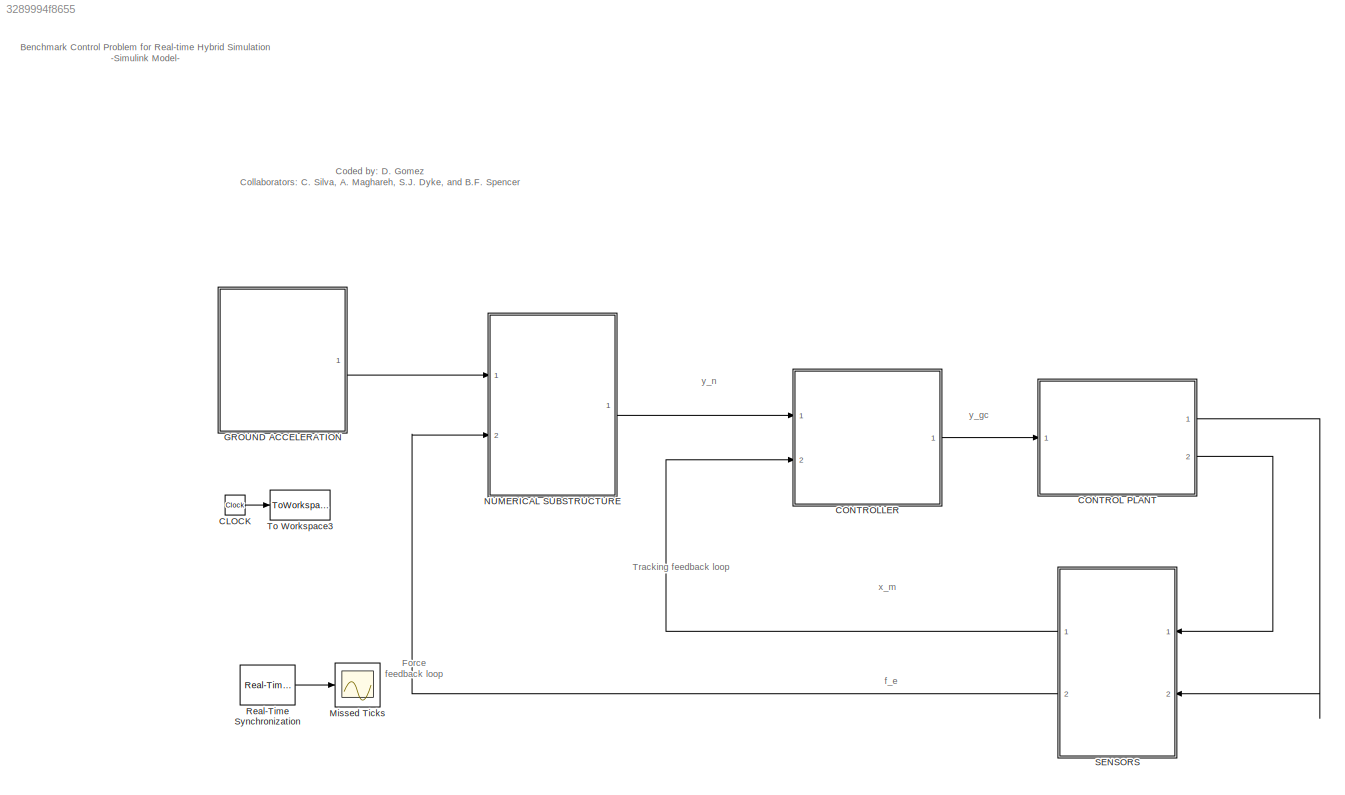
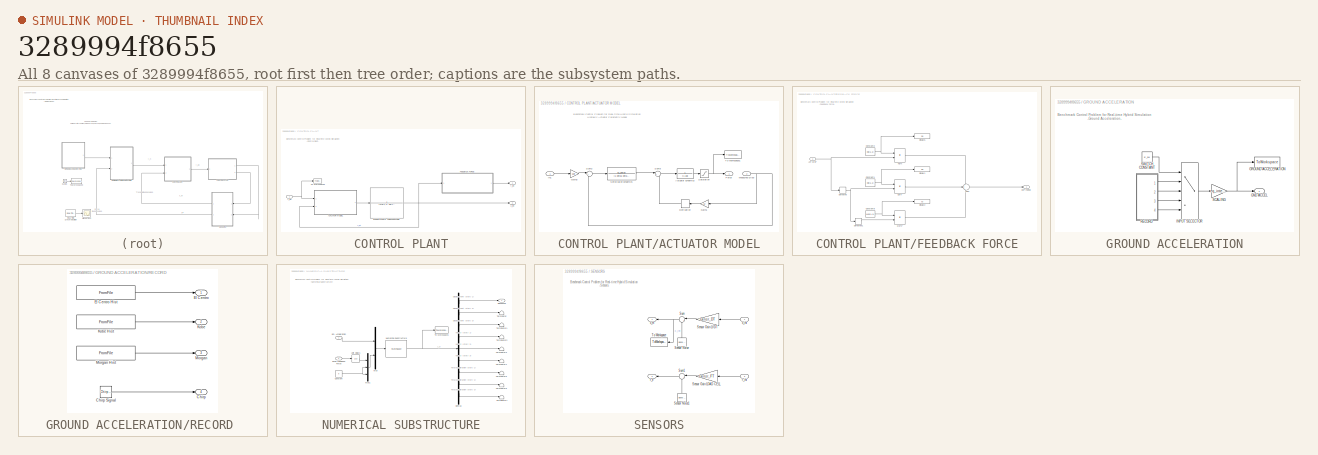
[diagram: thumbnail index - all 8 canvases of the model, root first then tree order]
MODEL slx_3289994f8655
KIND model
CONFIG AbsTol = auto
CONFIG EnableMultiTasking = on
CONFIG FixedStep = dt_rths
CONFIG MaxStep = auto
CONFIG MinStep = auto
CONFIG RelTol = 1e-3
CONFIG SampleTimeConstraint = Unconstrained
CONFIG Solver = ode4
CONFIG SolverName = ode4
CONFIG StartTime = 0.0
CONFIG StopTime = tend
BLOCK [Clock] CLOCK
  Decimation = 1
BLOCK [SubSystem] CONTROL PLANT
  Ports = [1, 2]
  RequestExecContextInheritance = off
BLOCK [SubSystem] CONTROL PLANT/ACTUATOR MODEL
  Ports = [2, 1]
  RequestExecContextInheritance = off
BLOCK [TransferFcn] CONTROL PLANT/ACTUATOR MODEL/Actuator dynamics
  Denominator = [1 a3]
  Numerator = 1
BLOCK [Derivative] CONTROL PLANT/ACTUATOR MODEL/Derivative
BLOCK [Outport] CONTROL PLANT/ACTUATOR MODEL/Force
  IconDisplay = Port number
BLOCK [Gain] CONTROL PLANT/ACTUATOR MODEL/Gain1
  Gain = a2
  Multiplication = Matrix(K*u)
  OutDataTypeStr = Inherit: Inherit via internal rule
  ParamDataTypeStr = Inherit: Inherit via internal rule
  SaturateOnIntegerOverflow = off
BLOCK [Gain] CONTROL PLANT/ACTUATOR MODEL/Gain3
  Gain = gain
  Multiplication = Matrix(K*u)
  OutDataTypeStr = Inherit: Inherit via internal rule
  ParamDataTypeStr = Inherit: Inherit via internal rule
  SaturateOnIntegerOverflow = off
BLOCK [Inport] CONTROL PLANT/ACTUATOR MODEL/In1
  IconDisplay = Port number
BLOCK [Inport] CONTROL PLANT/ACTUATOR MODEL/Measured Disp
  IconDisplay = Port number
  Port = 2
BLOCK [Saturate] CONTROL PLANT/ACTUATOR MODEL/Saturation
  InputPortMap = u0
  LowerLimit = -8900
  Ports = [1, 1]
  UpperLimit = 8900
BLOCK [TransferFcn] CONTROL PLANT/ACTUATOR MODEL/Servo-valve dynamics
  Denominator = [1 beta1 beta2]
  Numerator = a1_beta0
BLOCK [Sum] CONTROL PLANT/ACTUATOR MODEL/Sum2
  IconShape = round
  InputSameDT = off
  Inputs = |+-
  OutDataTypeStr = Inherit: Inherit via internal rule
  Ports = [2, 1]
  SaturateOnIntegerOverflow = off
BLOCK [Sum] CONTROL PLANT/ACTUATOR MODEL/Sum3
  IconShape = round
  InputSameDT = off
  Inputs = |+-
  OutDataTypeStr = Inherit: Inherit via internal rule
  Ports = [2, 1]
  SaturateOnIntegerOverflow = off
BLOCK [ToWorkspace] CONTROL PLANT/ACTUATOR MODEL/To Workspace1
  FixptAsFi = on
  MaxDataPoints = inf
  Ports = [1]
  SampleTime = -1
  SaveFormat = Timeseries
  VariableName = Force_act
BLOCK [TransferFcn] CONTROL PLANT/EXPERIMENTAL SUBSTRUCTURE
  Denominator = [ME(1,1) CE(1,1) KE(1,1)]
  Numerator = 1
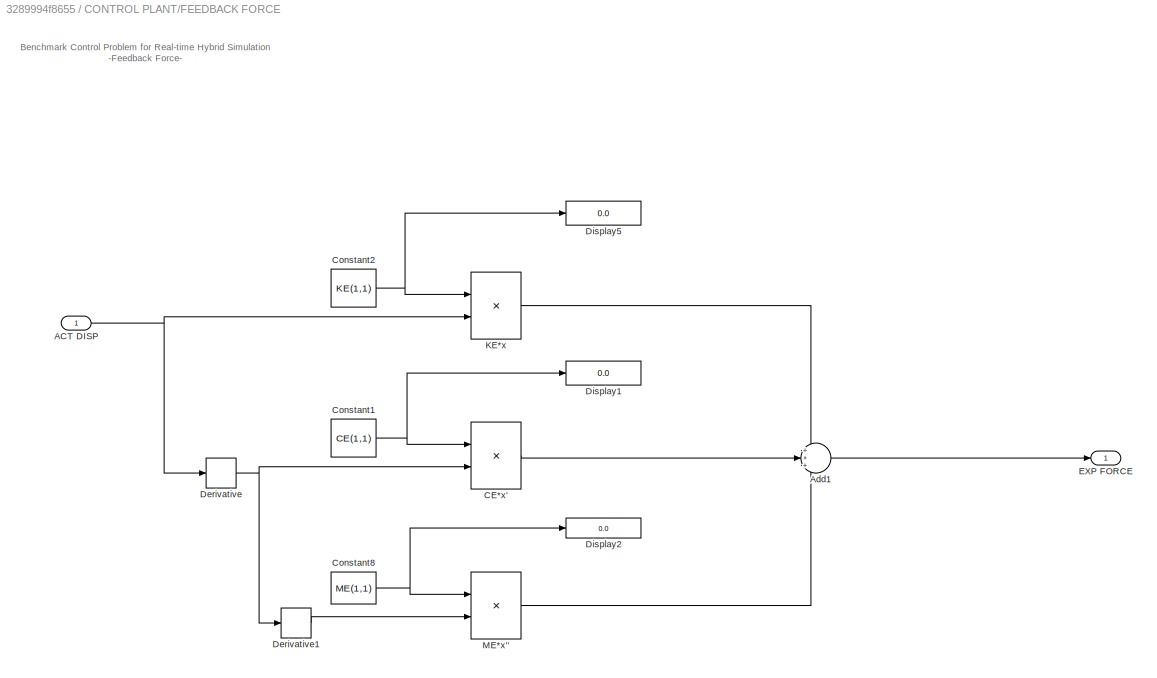
BLOCK [SubSystem] CONTROL PLANT/FEEDBACK FORCE
  Ports = [1, 1]
  RequestExecContextInheritance = off
BLOCK [Inport] CONTROL PLANT/FEEDBACK FORCE/ACT DISP
  IconDisplay = Port number
BLOCK [Sum] CONTROL PLANT/FEEDBACK FORCE/Add1
  IconShape = round
  InputSameDT = off
  Inputs = +++
  OutDataTypeStr = Inherit: Inherit via internal rule
  Ports = [3, 1]
  SaturateOnIntegerOverflow = off
BLOCK [Product] CONTROL PLANT/FEEDBACK FORCE/CE*x'
  InputSameDT = off
  OutDataTypeStr = Inherit: Inherit via internal rule
  Ports = [2, 1]
  SaturateOnIntegerOverflow = off
BLOCK [Constant] CONTROL PLANT/FEEDBACK FORCE/Constant1
  Value = CE(1,1)
  VectorParams1D = off
BLOCK [Constant] CONTROL PLANT/FEEDBACK FORCE/Constant2
  Value = KE(1,1)
  VectorParams1D = off
BLOCK [Constant] CONTROL PLANT/FEEDBACK FORCE/Constant8
  Value = ME(1,1)
  VectorParams1D = off
BLOCK [Derivative] CONTROL PLANT/FEEDBACK FORCE/Derivative
BLOCK [Derivative] CONTROL PLANT/FEEDBACK FORCE/Derivative1
BLOCK [Display] CONTROL PLANT/FEEDBACK FORCE/Display1
  Decimation = 1
  Ports = [1]
BLOCK [Display] CONTROL PLANT/FEEDBACK FORCE/Display2
  Decimation = 1
  Ports = [1]
BLOCK [Display] CONTROL PLANT/FEEDBACK FORCE/Display5
  Decimation = 1
  Ports = [1]
BLOCK [Outport] CONTROL PLANT/FEEDBACK FORCE/EXP FORCE
  IconDisplay = Port number
BLOCK [Product] CONTROL PLANT/FEEDBACK FORCE/KE*x
  InputSameDT = off
  OutDataTypeStr = Inherit: Inherit via internal rule
  Ports = [2, 1]
  SaturateOnIntegerOverflow = off
BLOCK [Product] CONTROL PLANT/FEEDBACK FORCE/ME*x''
  InputSameDT = off
  OutDataTypeStr = Inherit: Inherit via internal rule
  Ports = [2, 1]
  SaturateOnIntegerOverflow = off
BLOCK [ToWorkspace] CONTROL PLANT/To Workspace3
  FixptAsFi = on
  MaxDataPoints = inf
  Ports = [1]
  SampleTime = -1
  VariableName = y_gc
BLOCK [Outport] CONTROL PLANT/f_int
  IconDisplay = Port number
BLOCK [Outport] CONTROL PLANT/x_int
  IconDisplay = Port number
  Port = 2
BLOCK [Inport] CONTROL PLANT/y_gc
  IconDisplay = Port number
BLOCK [ModelReference] CONTROLLER
  ModelNameDialog = controller_model.slx
  ModelReferenceVersion = 1.9
  Ports = [2, 1]
BLOCK [SubSystem] GROUND ACCELERATION
  Ports = [0, 1]
  RequestExecContextInheritance = off
BLOCK [Outport] GROUND ACCELERATION/GND ACCEL
  IconDisplay = Port number
BLOCK [ToWorkspace] GROUND ACCELERATION/GROUND ACCELERATION
  MaxDataPoints = inf
  Ports = [1]
  SampleTime = -1
  VariableName = EQ_input
BLOCK [MultiPortSwitch] GROUND ACCELERATION/INPUT SELECTOR
  InputSameDT = off
  Inputs = 4
  Ports = [5, 1]
  SaturateOnIntegerOverflow = off
BLOCK [SubSystem] GROUND ACCELERATION/RECORD 
  Ports = [0, 4]
  RequestExecContextInheritance = off
BLOCK [Outport] GROUND ACCELERATION/RECORD /Chirp
  IconDisplay = Port number
  Port = 4
BLOCK [Reference] GROUND ACCELERATION/RECORD /Chirp Signal  REF=simulink/Sources/Chirp Signal
  Ports = [0, 1]
  SourceBlock = simulink/Sources/Chirp Signal
  SourceProductBaseCode = SL
  SourceProductName = Simulink
  SourceType = chirp
BLOCK [Outport] GROUND ACCELERATION/RECORD /El Centro
  IconDisplay = Port number
BLOCK [FromFile] GROUND ACCELERATION/RECORD /El Centro Hist
  FileName = ElCentroAccelNoScaling.mat
BLOCK [Outport] GROUND ACCELERATION/RECORD /Kobe
  IconDisplay = Port number
  Port = 2
BLOCK [FromFile] GROUND ACCELERATION/RECORD /Kobe Hist
  FileName = KobeAccelNoScaling.mat
BLOCK [Outport] GROUND ACCELERATION/RECORD /Morgan
  IconDisplay = Port number
  Port = 3
BLOCK [FromFile] GROUND ACCELERATION/RECORD /Morgan Hist
  FileName = MorganAccelNoScaling.mat
BLOCK [Gain] GROUND ACCELERATION/SCALING
  Gain = eq_intensity
  Multiplication = Matrix(K*u)
  OutDataTypeStr = Inherit: Inherit via internal rule
  ParamDataTypeStr = Inherit: Inherit via internal rule
  SaturateOnIntegerOverflow = off
BLOCK [Constant] GROUND ACCELERATION/SWITCH CONSTANT
  Value = E_sw
BLOCK [Scope] Missed Ticks
  Commented = on
  Floating = off
  NumInputPorts = 1
  Ports = [1]
  ScopeSpecificationString = C++SS(StrPVP('Open','off'),StrPVP('TimeRange','10'),StrPVP('TickLabels','OneTimeTick'),StrPVP('ShowLegends','off'),StrPVP('LimitDataPoints','off'),StrPVP('MaxDataPoints','5000'),StrPVP('SaveToWorkspace','off'),StrPVP('SaveName','ScopeData1'),StrPVP('YMin','-51.75'),StrPVP('YMax','465.75'),StrPVP('BlockParamSampleInput','off'),StrPVP('BlockParamSampleTime','-1'),StrPVP('ZoomMode','on'),StrPVP('Grid...<+573ch>
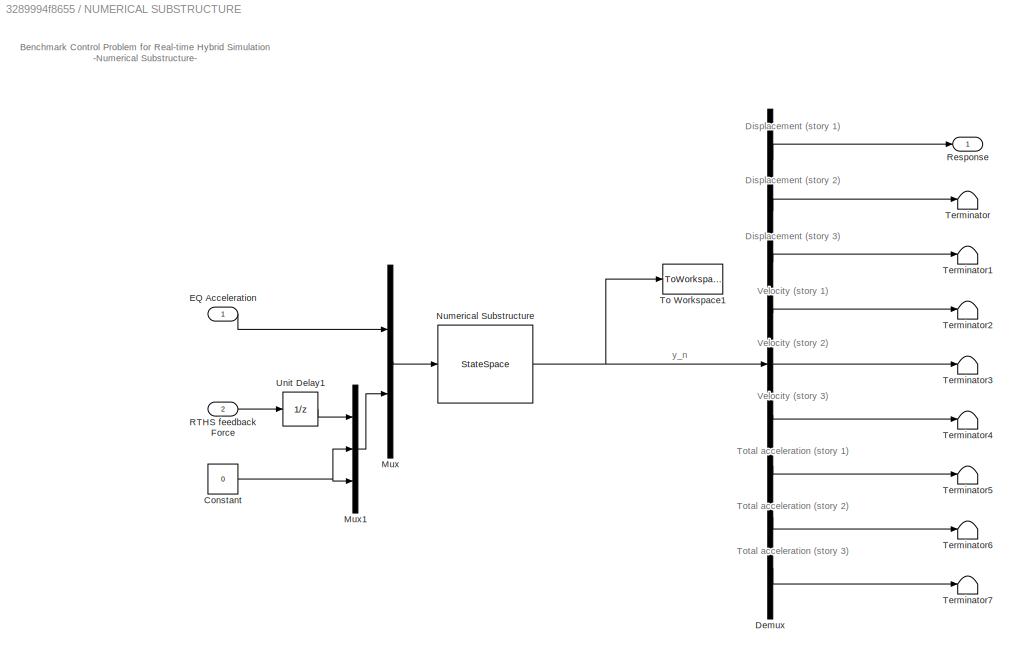
BLOCK [SubSystem] NUMERICAL SUBSTRUCTURE
  Ports = [2, 1]
  RequestExecContextInheritance = off
BLOCK [Constant] NUMERICAL SUBSTRUCTURE/Constant
  Value = 0
BLOCK [Demux] NUMERICAL SUBSTRUCTURE/Demux
  DisplayOption = bar
  Outputs = 9
  Ports = [1, 9]
BLOCK [Inport] NUMERICAL SUBSTRUCTURE/EQ Acceleration
  IconDisplay = Port number
BLOCK [Mux] NUMERICAL SUBSTRUCTURE/Mux
  DisplayOption = bar
  Inputs = 2
  Ports = [2, 1]
BLOCK [Mux] NUMERICAL SUBSTRUCTURE/Mux1
  DisplayOption = bar
  Inputs = 3
  Ports = [3, 1]
BLOCK [StateSpace] NUMERICAL SUBSTRUCTURE/Numerical Substructure
  A = A_ns
  B = B_ns
  C = C_ns
  D = D_ns
  InitialCondition = 0
  Ports = [1, 1]
BLOCK [Inport] NUMERICAL SUBSTRUCTURE/RTHS feedback Force
  IconDisplay = Port number
  Port = 2
BLOCK [Outport] NUMERICAL SUBSTRUCTURE/Response
  IconDisplay = Port number
BLOCK [Terminator] NUMERICAL SUBSTRUCTURE/Terminator
BLOCK [Terminator] NUMERICAL SUBSTRUCTURE/Terminator1
BLOCK [Terminator] NUMERICAL SUBSTRUCTURE/Terminator2
BLOCK [Terminator] NUMERICAL SUBSTRUCTURE/Terminator3
BLOCK [Terminator] NUMERICAL SUBSTRUCTURE/Terminator4
BLOCK [Terminator] NUMERICAL SUBSTRUCTURE/Terminator5
BLOCK [Terminator] NUMERICAL SUBSTRUCTURE/Terminator6
BLOCK [Terminator] NUMERICAL SUBSTRUCTURE/Terminator7
BLOCK [ToWorkspace] NUMERICAL SUBSTRUCTURE/To Workspace1
  FixptAsFi = on
  MaxDataPoints = inf
  Ports = [1]
  SampleTime = -1
  SaveFormat = Timeseries
  VariableName = Num_resp
BLOCK [UnitDelay] NUMERICAL SUBSTRUCTURE/Unit Delay1
  HasFrameUpgradeWarning = on
  SampleTime = -1
BLOCK [Reference] Real-Time Synchronization  REF=sldrtlib/Real-Time
Synchronization
  Commented = on
  Ports = [0, 1]
  SourceBlock = sldrtlib/Real-Time\nSynchronization
  SourceProductBaseCode = WT
  SourceProductName = Simulink Desktop Real-Time
  SourceType = Simulink Desktop Real-Time Synchronization
BLOCK [SubSystem] SENSORS
  Ports = [2, 2]
  RequestExecContextInheritance = off
BLOCK [Gain] SENSORS/Sensor Gain LOAD CELL
  Gain = Gsnsr_FT
BLOCK [Gain] SENSORS/Sensor Gain LVDT
  Gain = Gsnsr_DT
BLOCK [Reference] SENSORS/Sensor Noise  REF=simulink/Sources/Band-Limited
White Noise
  Ports = [0, 1]
  SourceBlock = simulink/Sources/Band-Limited\nWhite Noise
  SourceProductBaseCode = SL
  SourceProductName = Simulink
  SourceType = Band-Limited White Noise.
BLOCK [Reference] SENSORS/Sensor Noise1  REF=simulink/Sources/Band-Limited
White Noise
  Ports = [0, 1]
  SourceBlock = simulink/Sources/Band-Limited\nWhite Noise
  SourceProductBaseCode = SL
  SourceProductName = Simulink
  SourceType = Band-Limited White Noise.
BLOCK [Sum] SENSORS/Sum
  IconShape = round
  Inputs = |++
  Ports = [2, 1]
BLOCK [Sum] SENSORS/Sum1
  IconShape = round
  Inputs = |++
  Ports = [2, 1]
BLOCK [ToWorkspace] SENSORS/To Workspace
  FixptAsFi = on
  MaxDataPoints = inf
  Ports = [1]
  SampleTime = -1
  SaveFormat = Timeseries
  VariableName = X_m
BLOCK [Outport] SENSORS/f_e 
  IconDisplay = Port number
  Port = 2
BLOCK [Inport] SENSORS/f_int
  IconDisplay = Port number
  Port = 2
BLOCK [Inport] SENSORS/x_int
  IconDisplay = Port number
BLOCK [Outport] SENSORS/x_m
  IconDisplay = Port number
BLOCK [ToWorkspace] To Workspace3
  MaxDataPoints = inf
  Ports = [1]
  SampleTime = -1
  VariableName = t
ANNOTATION (root): Coded by: D. Gomez Collaborators: C. Silva, A. Maghareh, S.J. Dyke, and B.F. Spencer
ANNOTATION (root): Benchmark Control Problem for Real-time Hybrid Simulation -Simulink Model-
ANNOTATION (root): f_e
ANNOTATION (root): x_m
ANNOTATION (root): y_gc
ANNOTATION (root): y_n
ANNOTATION (root): Force feedback loop
ANNOTATION (root): Tracking feedback loop
ANNOTATION CONTROL PLANT: Benchmark Control Problem for Real-time Hybrid Simulation -Control Plant-
ANNOTATION CONTROL PLANT/ACTUATOR MODEL: Benchmark Control Problem for Real-time Hybrid Simulation Hydraulic Actuator Parametric Model
ANNOTATION CONTROL PLANT/FEEDBACK FORCE: Benchmark Control Problem for Real-time Hybrid Simulation -Feedback Force-
ANNOTATION GROUND ACCELERATION: Benchmark Control Problem for Real-time Hybrid Simulation -Ground Acceleration-
ANNOTATION NUMERICAL SUBSTRUCTURE: Benchmark Control Problem for Real-time Hybrid Simulation -Numerical Substructure-
ANNOTATION NUMERICAL SUBSTRUCTURE: y_n
ANNOTATION NUMERICAL SUBSTRUCTURE: Displacement (story 1)
ANNOTATION NUMERICAL SUBSTRUCTURE: Displacement (story 2)
ANNOTATION NUMERICAL SUBSTRUCTURE: Displacement (story 3)
ANNOTATION NUMERICAL SUBSTRUCTURE: Total acceleration (story 2)
ANNOTATION NUMERICAL SUBSTRUCTURE: Total acceleration (story 1)
ANNOTATION NUMERICAL SUBSTRUCTURE: Total acceleration (story 3)
ANNOTATION NUMERICAL SUBSTRUCTURE: Velocity (story 1)
ANNOTATION NUMERICAL SUBSTRUCTURE: Velocity (story 2)
ANNOTATION NUMERICAL SUBSTRUCTURE: Velocity (story 3)
ANNOTATION SENSORS: Benchmark Control Problem for Real-time Hybrid Simulation -Sensors-
LINE CLOCK:1 -> To Workspace3:1
LINE CONTROL PLANT/ACTUATOR MODEL/Actuator dynamics:1 -> CONTROL PLANT/ACTUATOR MODEL/Saturation:1
LINE CONTROL PLANT/ACTUATOR MODEL/Derivative:1 -> CONTROL PLANT/ACTUATOR MODEL/Sum3:2
LINE CONTROL PLANT/ACTUATOR MODEL/Gain1:1 -> CONTROL PLANT/ACTUATOR MODEL/Derivative:1
LINE CONTROL PLANT/ACTUATOR MODEL/Gain3:1 -> CONTROL PLANT/ACTUATOR MODEL/Sum2:1
LINE CONTROL PLANT/ACTUATOR MODEL/In1:1 -> CONTROL PLANT/ACTUATOR MODEL/Gain3:1
NET CONTROL PLANT/ACTUATOR MODEL/Measured Disp:1 -> CONTROL PLANT/ACTUATOR MODEL/Gain1:1, CONTROL PLANT/ACTUATOR MODEL/Sum2:2
NET CONTROL PLANT/ACTUATOR MODEL/Saturation:1 -> CONTROL PLANT/ACTUATOR MODEL/Force:1, CONTROL PLANT/ACTUATOR MODEL/To Workspace1:1
LINE CONTROL PLANT/ACTUATOR MODEL/Servo-valve dynamics:1 -> CONTROL PLANT/ACTUATOR MODEL/Sum3:1
LINE CONTROL PLANT/ACTUATOR MODEL/Sum2:1 -> CONTROL PLANT/ACTUATOR MODEL/Servo-valve dynamics:1
LINE CONTROL PLANT/ACTUATOR MODEL/Sum3:1 -> CONTROL PLANT/ACTUATOR MODEL/Actuator dynamics:1
LINE CONTROL PLANT/ACTUATOR MODEL:1 -> CONTROL PLANT/EXPERIMENTAL SUBSTRUCTURE:1
NET CONTROL PLANT/EXPERIMENTAL SUBSTRUCTURE:1 -> CONTROL PLANT/ACTUATOR MODEL:2, CONTROL PLANT/FEEDBACK FORCE:1, CONTROL PLANT/x_int:1
NET CONTROL PLANT/FEEDBACK FORCE/ACT DISP:1 -> CONTROL PLANT/FEEDBACK FORCE/Derivative:1, CONTROL PLANT/FEEDBACK FORCE/KE*x:2
LINE CONTROL PLANT/FEEDBACK FORCE/Add1:1 -> CONTROL PLANT/FEEDBACK FORCE/EXP FORCE:1
LINE CONTROL PLANT/FEEDBACK FORCE/CE*x':1 -> CONTROL PLANT/FEEDBACK FORCE/Add1:2
NET CONTROL PLANT/FEEDBACK FORCE/Constant1:1 -> CONTROL PLANT/FEEDBACK FORCE/CE*x':1, CONTROL PLANT/FEEDBACK FORCE/Display1:1
NET CONTROL PLANT/FEEDBACK FORCE/Constant2:1 -> CONTROL PLANT/FEEDBACK FORCE/Display5:1, CONTROL PLANT/FEEDBACK FORCE/KE*x:1
NET CONTROL PLANT/FEEDBACK FORCE/Constant8:1 -> CONTROL PLANT/FEEDBACK FORCE/Display2:1, CONTROL PLANT/FEEDBACK FORCE/ME*x'':1
LINE CONTROL PLANT/FEEDBACK FORCE/Derivative1:1 -> CONTROL PLANT/FEEDBACK FORCE/ME*x'':2
NET CONTROL PLANT/FEEDBACK FORCE/Derivative:1 -> CONTROL PLANT/FEEDBACK FORCE/CE*x':2, CONTROL PLANT/FEEDBACK FORCE/Derivative1:1
LINE CONTROL PLANT/FEEDBACK FORCE/KE*x:1 -> CONTROL PLANT/FEEDBACK FORCE/Add1:1
LINE CONTROL PLANT/FEEDBACK FORCE/ME*x'':1 -> CONTROL PLANT/FEEDBACK FORCE/Add1:3
LINE CONTROL PLANT/FEEDBACK FORCE:1 -> CONTROL PLANT/f_int:1
NET CONTROL PLANT/y_gc:1 -> CONTROL PLANT/ACTUATOR MODEL:1, CONTROL PLANT/To Workspace3:1
LINE CONTROL PLANT:1 -> SENSORS:2
LINE CONTROL PLANT:2 -> SENSORS:1
LINE CONTROLLER:1 -> CONTROL PLANT:1
LINE GROUND ACCELERATION/INPUT SELECTOR:1 -> GROUND ACCELERATION/SCALING:1
LINE GROUND ACCELERATION/RECORD /Chirp Signal:1 -> GROUND ACCELERATION/RECORD /Chirp:1
LINE GROUND ACCELERATION/RECORD /El Centro Hist:1 -> GROUND ACCELERATION/RECORD /El Centro:1
LINE GROUND ACCELERATION/RECORD /Kobe Hist:1 -> GROUND ACCELERATION/RECORD /Kobe:1
LINE GROUND ACCELERATION/RECORD /Morgan Hist:1 -> GROUND ACCELERATION/RECORD /Morgan:1
LINE GROUND ACCELERATION/RECORD :1 -> GROUND ACCELERATION/INPUT SELECTOR:2
LINE GROUND ACCELERATION/RECORD :2 -> GROUND ACCELERATION/INPUT SELECTOR:3
LINE GROUND ACCELERATION/RECORD :3 -> GROUND ACCELERATION/INPUT SELECTOR:4
LINE GROUND ACCELERATION/RECORD :4 -> GROUND ACCELERATION/INPUT SELECTOR:5
NET GROUND ACCELERATION/SCALING:1 -> GROUND ACCELERATION/GND ACCEL:1, GROUND ACCELERATION/GROUND ACCELERATION:1
LINE GROUND ACCELERATION/SWITCH CONSTANT:1 -> GROUND ACCELERATION/INPUT SELECTOR:1
LINE GROUND ACCELERATION:1 -> NUMERICAL SUBSTRUCTURE:1
NET NUMERICAL SUBSTRUCTURE/Constant:1 -> NUMERICAL SUBSTRUCTURE/Mux1:2, NUMERICAL SUBSTRUCTURE/Mux1:3
LINE NUMERICAL SUBSTRUCTURE/Demux:1 -> NUMERICAL SUBSTRUCTURE/Response:1
LINE NUMERICAL SUBSTRUCTURE/Demux:2 -> NUMERICAL SUBSTRUCTURE/Terminator:1
LINE NUMERICAL SUBSTRUCTURE/Demux:3 -> NUMERICAL SUBSTRUCTURE/Terminator1:1
LINE NUMERICAL SUBSTRUCTURE/Demux:4 -> NUMERICAL SUBSTRUCTURE/Terminator2:1
LINE NUMERICAL SUBSTRUCTURE/Demux:5 -> NUMERICAL SUBSTRUCTURE/Terminator3:1
LINE NUMERICAL SUBSTRUCTURE/Demux:6 -> NUMERICAL SUBSTRUCTURE/Terminator4:1
LINE NUMERICAL SUBSTRUCTURE/Demux:7 -> NUMERICAL SUBSTRUCTURE/Terminator5:1
LINE NUMERICAL SUBSTRUCTURE/Demux:8 -> NUMERICAL SUBSTRUCTURE/Terminator6:1
LINE NUMERICAL SUBSTRUCTURE/Demux:9 -> NUMERICAL SUBSTRUCTURE/Terminator7:1
LINE NUMERICAL SUBSTRUCTURE/EQ Acceleration:1 -> NUMERICAL SUBSTRUCTURE/Mux:1
LINE NUMERICAL SUBSTRUCTURE/Mux1:1 -> NUMERICAL SUBSTRUCTURE/Mux:2
LINE NUMERICAL SUBSTRUCTURE/Mux:1 -> NUMERICAL SUBSTRUCTURE/Numerical Substructure:1
NET NUMERICAL SUBSTRUCTURE/Numerical Substructure:1 -> NUMERICAL SUBSTRUCTURE/Demux:1, NUMERICAL SUBSTRUCTURE/To Workspace1:1
LINE NUMERICAL SUBSTRUCTURE/RTHS feedback Force:1 -> NUMERICAL SUBSTRUCTURE/Unit Delay1:1
LINE NUMERICAL SUBSTRUCTURE/Unit Delay1:1 -> NUMERICAL SUBSTRUCTURE/Mux1:1
LINE NUMERICAL SUBSTRUCTURE:1 -> CONTROLLER:1
LINE Real-Time Synchronization:1 -> Missed Ticks:1
LINE SENSORS/Sensor Gain LOAD CELL:1 -> SENSORS/Sum1:1
LINE SENSORS/Sensor Gain LVDT:1 -> SENSORS/Sum:1
LINE SENSORS/Sensor Noise1:1 -> SENSORS/Sum1:2
LINE SENSORS/Sensor Noise:1 -> SENSORS/Sum:2
LINE SENSORS/Sum1:1 -> SENSORS/f_e :1
NET SENSORS/Sum:1 -> SENSORS/To Workspace:1, SENSORS/x_m:1
LINE SENSORS/f_int:1 -> SENSORS/Sensor Gain LOAD CELL:1
LINE SENSORS/x_int:1 -> SENSORS/Sensor Gain LVDT:1
LINE SENSORS:1 -> CONTROLLER:2
LINE SENSORS:2 -> NUMERICAL SUBSTRUCTURE:2
note: NET lines group one-source signal fan-out (src -> all destinations, sorted); 1:1 wires keep LINE
